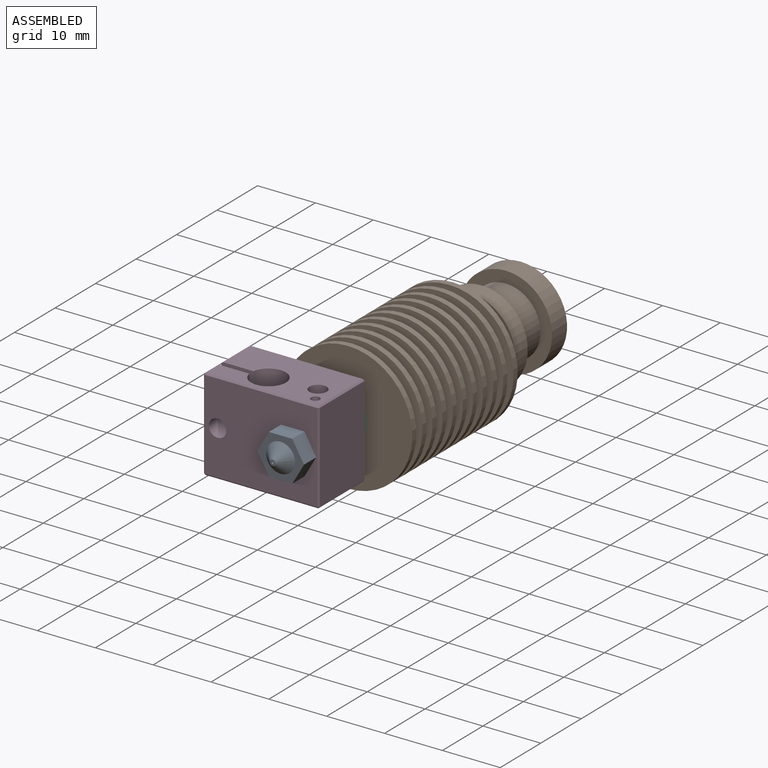
[diagram: assembled view]
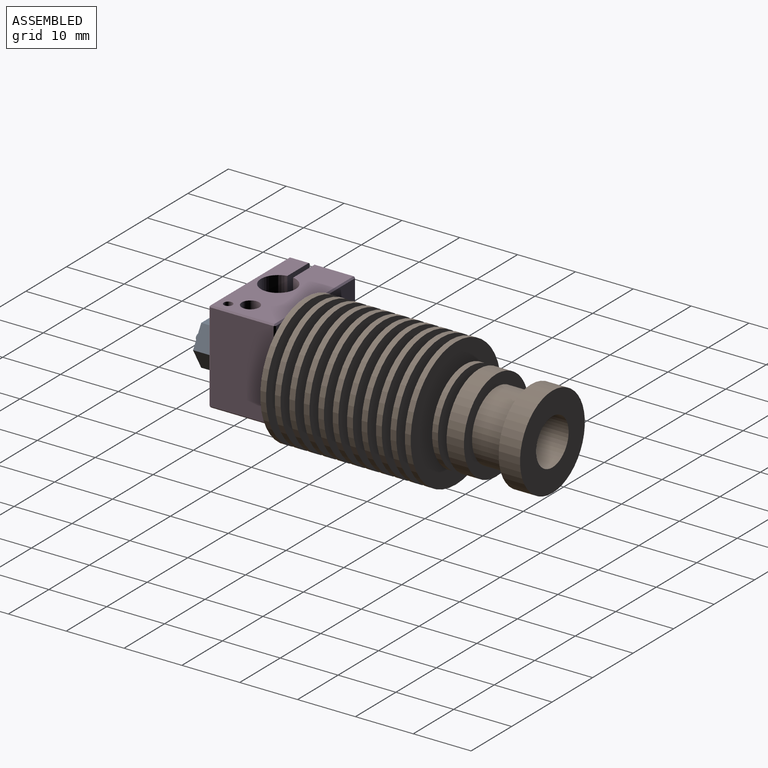
[diagram: assembled view, second angle]
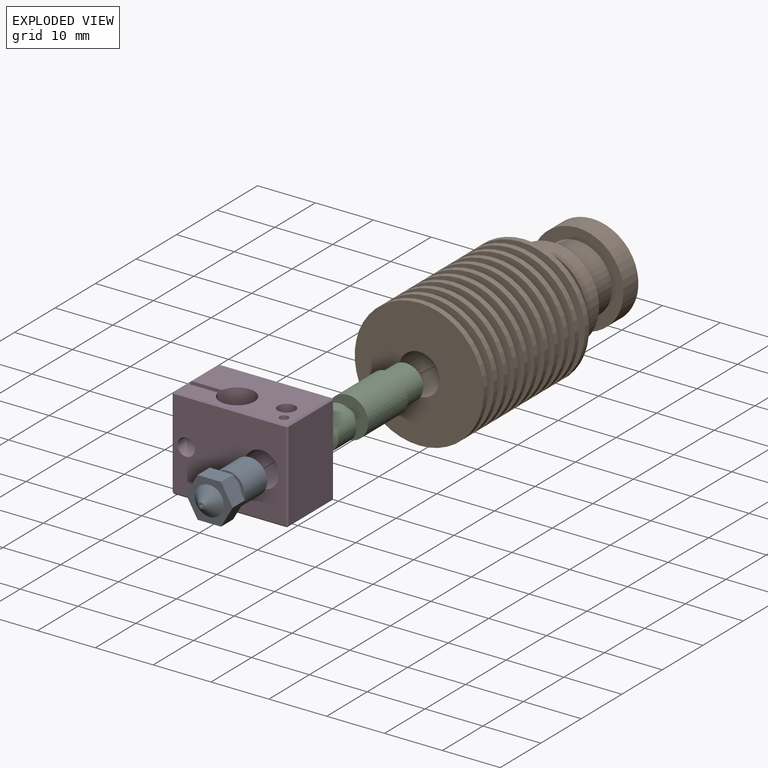
[diagram: exploded view]
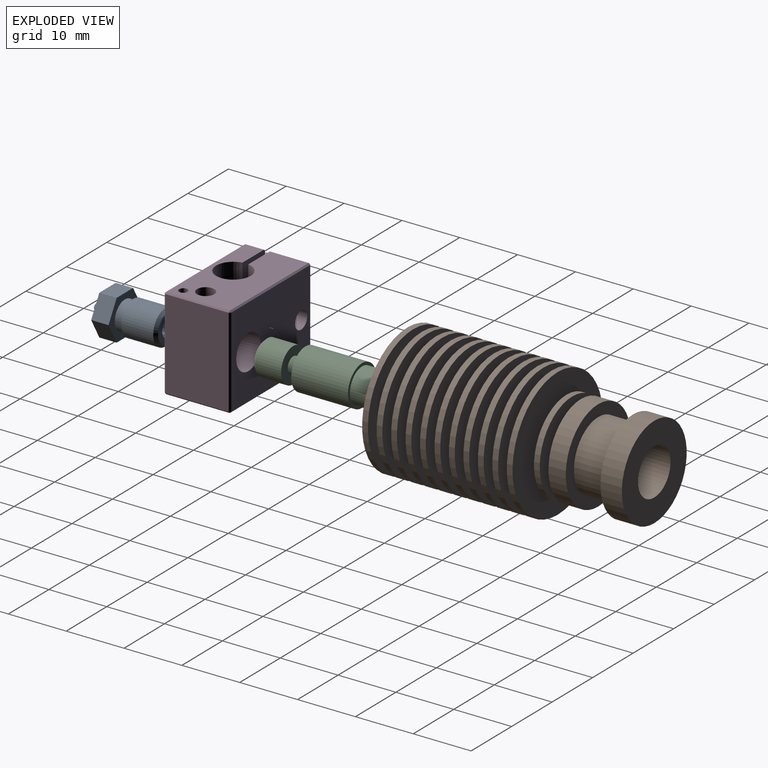
[diagram: exploded view, second angle]
ASSEMBLY  parts=4 mates=3
PART A: 22 faces, bbox 8.1x12.5x7 mm
  f0: plane 8.08x7mm, normal (0,-1,0), area 22.8mm2, adj f1,f2,f3,f4,f5,f6,f7
  f1: cone r=0mm half-angle=45deg, axis (0,1,0), area 26.7mm2, adj f0,f8
  f2: plane 3.5x3mm, normal (-0.87,0,0.5), area 12.1mm2, adj f0,f3,f7,f9
  f3: plane 3.5x3mm, normal (-0.87,0,-0.5), area 12.1mm2, adj f0,f2,f4,f9
  f4: plane 4.04x3mm, normal (0,0,-1), area 12.1mm2, adj f0,f3,f5,f9
  f5: plane 3.5x3mm, normal (0.87,0,-0.5), area 12.1mm2, adj f0,f4,f6,f9
  f6: plane 3.5x3mm, normal (0.87,0,0.5), area 12.1mm2, adj f0,f5,f7,f9
  f7: plane 4.04x3mm, normal (0,0,1), area 12.1mm2, adj f0,f2,f6,f9
  f8: plane 1x1mm, normal (0,-1,0), area 0.7mm2, adj f1,f10,f11
  f9: plane 8.08x7mm, normal (0,1,0), area 22.8mm2, adj f2,f3,f4,f5,f6,f7,f12
  f10: cylinder r=0.2mm len=0.8mm, axis (0,1,0), area 0.5mm2, adj f8,f11,f13
  f11: cylinder r=0.2mm len=0.8mm, axis (0,1,0), area 0.5mm2, adj f8,f10,f13
  f12: cylinder r=2.5mm len=5mm, axis (0,1,0), area 23.6mm2, adj f9,f14
  f13: cone r=0mm half-angle=47.7deg, axis (0,1,0), area 2.2mm2, adj f10,f11,f15
  f14: plane 6x6mm, normal (0,-1,0), area 8.6mm2, adj f12,f16
  f15: cylinder r=0.75mm len=1.5mm, axis (0,1,0), area 2.2mm2, adj f13,f17
  f16: cylinder r=3mm len=6mm, axis (0,1,0), area 103.7mm2, adj f14,f18
  f17: cone r=0mm half-angle=47.7deg, axis (0,1,0), area 1.9mm2, adj f15,f19
  f18: cone r=0mm half-angle=45deg, axis (0,-1,0), area 12.2mm2, adj f16,f20
  f19: cylinder r=1mm len=10mm, axis (0,1,0), area 62.8mm2, adj f17,f21
  f20: plane 5x5mm, normal (0,1,0), area 12.6mm2, adj f18,f21
  f21: cone r=0mm half-angle=45deg, axis (0,1,0), area 5.6mm2, adj f19,f20
PART B: 78 faces, bbox 22.3x42.7x22.3 mm
  f0: cylinder r=2.1mm len=20mm, axis (0,-1,0), area 263.9mm2, adj f1,f2
  f1: cone r=0mm half-angle=45deg, axis (0,-1,0), area 34.8mm2, adj f0,f3
  f2: cone r=0mm half-angle=45deg, axis (0,1,0), area 51.5mm2, adj f0,f4
  f3: cylinder r=3.5mm len=13.3mm, axis (0,-1,0), area 292.5mm2, adj f1,f5
  f4: cylinder r=4mm len=8mm, axis (0,-1,0), area 153.3mm2, adj f2,f6
  f5: plane 22.3x22.3mm, normal (0,-1,0), area 352.1mm2, adj f3,f7
  f6: plane 16x16mm, normal (0,1,0), area 150.8mm2, adj f4,f8
  f7: cylinder r=11.15mm len=22.3mm, axis (0,-1,0), area 70.1mm2, adj f5,f9
  f8: cylinder r=8mm len=16mm, axis (0,-1,0), area 186mm2, adj f6,f10
  f9: plane 22.3x22.3mm, normal (0,1,0), area 277.5mm2, adj f7,f11
  f10: plane 16x16mm, normal (0,-1,0), area 88mm2, adj f8,f12
  f11: cylinder r=6mm len=12mm, axis (0,-1,0), area 56.5mm2, adj f9,f13
  f12: cylinder r=6mm len=12mm, axis (0,-1,0), area 226.2mm2, adj f10,f14
  f13: plane 22.3x22.3mm, normal (0,-1,0), area 277.5mm2, adj f11,f15,f16
  f14: plane 16x16mm, normal (0,1,0), area 88mm2, adj f12,f17
  f15: cylinder r=11.15mm len=22.3mm, axis (0,-1,0), area 35mm2, adj f13,f16,f18
  f16: cylinder r=11.15mm len=22.3mm, axis (0,-1,0), area 35mm2, adj f13,f15,f18
  f17: cylinder r=8mm len=16mm, axis (0,-1,0), area 150.8mm2, adj f14,f19
  f18: plane 22.3x22.3mm, normal (0,1,0), area 282.4mm2, adj f15,f16,f20,f21
  f19: plane 16x16mm, normal (0,-1,0), area 132mm2, adj f17,f22
  f20: cylinder r=5.87mm len=11.74mm, axis (0,-1,0), area 27.7mm2, adj f18,f21,f23
  f21: cylinder r=5.87mm len=11.74mm, axis (0,-1,0), area 27.7mm2, adj f18,f20,f23
  f22: cylinder r=4.69mm len=9.38mm, axis (0,-1,0), area 44.2mm2, adj f19,f24
  f23: plane 22.3x22.3mm, normal (0,-1,0), area 282.4mm2, adj f20,f21,f25,f26
  f24: plane 16x16mm, normal (0,1,0), area 132mm2, adj f22,f27
  f25: cylinder r=11.15mm len=22.3mm, axis (0,-1,0), area 35mm2, adj f23,f26,f28
  f26: cylinder r=11.15mm len=22.3mm, axis (0,-1,0), area 35mm2, adj f23,f25,f28
  f27: cylinder r=8mm len=16mm, axis (0,-1,0), area 50.3mm2, adj f24,f29
  f28: plane 22.3x22.3mm, normal (0,1,0), area 287.1mm2, adj f25,f26,f30,f31
  f29: plane 16x16mm, normal (0,-1,0), area 132mm2, adj f27,f32
  f30: cylinder r=5.74mm len=11.48mm, axis (0,-1,0), area 27mm2, adj f28,f31,f33
  f31: cylinder r=5.74mm len=11.48mm, axis (0,-1,0), area 27mm2, adj f28,f30,f33
  f32: cylinder r=4.69mm len=9.38mm, axis (0,-1,0), area 44.2mm2, adj f29,f34
  f33: plane 22.3x22.3mm, normal (0,-1,0), area 287.1mm2, adj f30,f31,f35,f36
  f34: plane 22.3x22.3mm, normal (0,1,0), area 321.5mm2, adj f32,f37
  f35: cylinder r=11.15mm len=22.3mm, axis (0,-1,0), area 35mm2, adj f33,f36,f38
  f36: cylinder r=11.15mm len=22.3mm, axis (0,-1,0), area 35mm2, adj f33,f35,f38
  f37: cylinder r=11.15mm len=22.3mm, axis (0,-1,0), area 70.1mm2, adj f34,f39
  f38: plane 22.3x22.3mm, normal (0,1,0), area 291.8mm2, adj f35,f36,f40,f41
  f39: plane 22.3x22.3mm, normal (0,-1,0), area 317.6mm2, adj f37,f42,f43
  f40: cylinder r=5.61mm len=11.21mm, axis (0,-1,0), area 26.4mm2, adj f38,f41,f44
  f41: cylinder r=5.61mm len=11.21mm, axis (0,-1,0), area 26.4mm2, adj f38,f40,f44
  f42: cylinder r=4.82mm len=9.64mm, axis (0,-1,0), area 22.7mm2, adj f39,f43,f45
  f43: cylinder r=4.82mm len=9.64mm, axis (0,-1,0), area 22.7mm2, adj f39,f42,f45
  f44: plane 22.3x22.3mm, normal (0,-1,0), area 291.8mm2, adj f40,f41,f46,f47
  f45: plane 22.3x22.3mm, normal (0,1,0), area 317.6mm2, adj f42,f43,f48,f49
  f46: cylinder r=11.15mm len=22.3mm, axis (0,-1,0), area 35mm2, adj f44,f47,f50
  f47: cylinder r=11.15mm len=22.3mm, axis (0,-1,0), area 35mm2, adj f44,f46,f50
  f48: cylinder r=11.15mm len=22.3mm, axis (0,-1,0), area 35mm2, adj f45,f49,f51
  f49: cylinder r=11.15mm len=22.3mm, axis (0,-1,0), area 35mm2, adj f45,f48,f51
  f50: plane 22.3x22.3mm, normal (0,1,0), area 296.4mm2, adj f46,f47,f52,f53
  f51: plane 22.3x22.3mm, normal (0,-1,0), area 313.5mm2, adj f48,f49,f54,f55
  f52: cylinder r=5.48mm len=10.95mm, axis (0,-1,0), area 25.8mm2, adj f50,f53,f56
  f53: cylinder r=5.48mm len=10.95mm, axis (0,-1,0), area 25.8mm2, adj f50,f52,f56
  f54: cylinder r=4.95mm len=9.9mm, axis (0,-1,0), area 23.3mm2, adj f51,f55,f57
  f55: cylinder r=4.95mm len=9.9mm, axis (0,-1,0), area 23.3mm2, adj f51,f54,f57
  f56: plane 22.3x22.3mm, normal (0,-1,0), area 296.4mm2, adj f52,f53,f58,f59
  f57: plane 22.3x22.3mm, normal (0,1,0), area 313.5mm2, adj f54,f55,f60,f61
  f58: cylinder r=11.15mm len=22.3mm, axis (0,-1,0), area 35mm2, adj f56,f59,f62
  f59: cylinder r=11.15mm len=22.3mm, axis (0,-1,0), area 35mm2, adj f56,f58,f62
  f60: cylinder r=11.15mm len=22.3mm, axis (0,-1,0), area 35mm2, adj f57,f61,f63
  f61: cylinder r=11.15mm len=22.3mm, axis (0,-1,0), area 35mm2, adj f57,f60,f63
  f62: plane 22.3x22.3mm, normal (0,1,0), area 300.8mm2, adj f58,f59,f64,f65
  f63: plane 22.3x22.3mm, normal (0,-1,0), area 309.4mm2, adj f60,f61,f66,f67
  f64: cylinder r=5.34mm len=10.69mm, axis (0,-1,0), area 25.2mm2, adj f62,f65,f68
  f65: cylinder r=5.34mm len=10.69mm, axis (0,-1,0), area 25.2mm2, adj f62,f64,f68
  f66: cylinder r=5.08mm len=10.17mm, axis (0,-1,0), area 24mm2, adj f63,f67,f69
  f67: cylinder r=5.08mm len=10.17mm, axis (0,-1,0), area 24mm2, adj f63,f66,f69
  f68: plane 22.3x22.3mm, normal (0,-1,0), area 300.8mm2, adj f64,f65,f70,f71
  f69: plane 22.3x22.3mm, normal (0,1,0), area 309.4mm2, adj f66,f67,f72,f73
  f70: cylinder r=11.15mm len=22.3mm, axis (0,-1,0), area 35mm2, adj f68,f71,f74
  f71: cylinder r=11.15mm len=22.3mm, axis (0,-1,0), area 35mm2, adj f68,f70,f74
  f72: cylinder r=11.15mm len=22.3mm, axis (0,-1,0), area 35mm2, adj f69,f73,f76
  f73: cylinder r=11.15mm len=22.3mm, axis (0,-1,0), area 35mm2, adj f69,f72,f76
  f74: plane 22.3x22.3mm, normal (0,1,0), area 305.2mm2, adj f70,f71,f75,f77
  f75: cylinder r=5.21mm len=10.43mm, axis (0,-1,0), area 24.6mm2, adj f74,f76,f77
  f76: plane 22.3x22.3mm, normal (0,-1,0), area 305.2mm2, adj f72,f73,f75,f77
  f77: cylinder r=5.21mm len=10.43mm, axis (0,-1,0), area 24.6mm2, adj f74,f75,f76
PART C: 15 faces, bbox 7x21.9x7 mm
  f0: cylinder r=3.5mm len=9.8mm, axis (0,1,0), area 215.5mm2, adj f1,f2
  f1: plane 7x7mm, normal (0,-1,0), area 32.3mm2, adj f0,f3
  f2: plane 7x7mm, normal (0,1,0), area 10.2mm2, adj f0,f4
  f3: cylinder r=1.4mm len=2.8mm, axis (0,1,0), area 18.5mm2, adj f1,f5
  f4: cylinder r=3mm len=6mm, axis (0,1,0), area 84.8mm2, adj f2,f6,f7
  f5: plane 6x6mm, normal (0,1,0), area 22.1mm2, adj f3,f8
  f6: cone r=0mm half-angle=45deg, axis (0,-1,0), area 6.1mm2, adj f4,f7,f9
  f7: cone r=0mm half-angle=45deg, axis (0,-1,0), area 6.1mm2, adj f4,f6,f9
  f8: cylinder r=3mm len=6mm, axis (0,1,0), area 84.8mm2, adj f5,f10
  f9: plane 5x5mm, normal (0,1,0), area 5.8mm2, adj f6,f7,f11
  f10: cone r=0mm half-angle=45deg, axis (0,1,0), area 12.2mm2, adj f8,f12
  f11: cylinder r=2.1mm len=5mm, axis (0,1,0), area 66mm2, adj f9,f13
  f12: plane 5x5mm, normal (0,-1,0), area 16.5mm2, adj f10,f14
  f13: cone r=0mm half-angle=45deg, axis (0,1,0), area 15.2mm2, adj f11,f14
  f14: cylinder r=1mm len=15.8mm, axis (0,1,0), area 99.3mm2, adj f12,f13
PART D: 39 faces, bbox 20x11.5x16 mm
  f0: plane 0.25x0.25mm, normal (0.58,-0.58,-0.58), area 0.1mm2, adj f4,f9,f11
  f1: plane 0.25x0.25mm, normal (0.58,0.58,-0.58), area 0.1mm2, adj f5,f10,f11
  f2: plane 0.25x0.25mm, normal (-0.58,-0.58,-0.58), area 0.1mm2, adj f3,f9,f12
  f3: plane 15.5x0.25mm, normal (-0.71,-0.71,0), area 5.5mm2, adj f2,f14,f15,f16
  f4: plane 15.5x0.25mm, normal (0.71,-0.71,0), area 5.5mm2, adj f0,f15,f17,f18
  f5: plane 15.5x0.25mm, normal (0.71,0.71,0), area 5.5mm2, adj f1,f17,f19,f20
  f6: cylinder r=3mm len=11.5mm, axis (0,-1,0), area 216.8mm2, adj f15,f20
  f7: plane 0.25x0.25mm, normal (-0.58,0.58,-0.58), area 0.1mm2, adj f8,f10,f22
  f8: plane 15.5x0.25mm, normal (-0.71,0.71,0), area 5.5mm2, adj f7,f20,f21,f23
  f9: plane 19.5x0.25mm, normal (0,-0.71,-0.71), area 6.9mm2, adj f0,f2,f15,f25
  f10: plane 19.5x0.25mm, normal (0,0.71,-0.71), area 6.9mm2, adj f1,f7,f20,f25
  f11: plane 11x0.25mm, normal (0.71,0,-0.71), area 3.9mm2, adj f0,f1,f17,f25
  f12: plane 3.25x0.25mm, normal (-0.71,0,-0.71), area 1.1mm2, adj f2,f14,f25,f27
  f13: cylinder r=1.5mm len=3.5mm, axis (0,1,0), area 33mm2, adj f15,f27
  f14: plane 15.5x3.25mm, normal (-1,0,0), area 50.4mm2, adj f3,f12,f27,f28
  f15: plane 19.5x15.5mm, normal (0,-1,0), area 266.9mm2, adj f3,f4,f6,f9,f13,f29
  f16: plane 0.25x0.25mm, normal (-0.58,-0.58,0.58), area 0.1mm2, adj f3,f28,f29
  f17: plane 15.5x11mm, normal (1,0,0), area 170.5mm2, adj f4,f5,f11,f30
  f18: plane 0.25x0.25mm, normal (0.58,-0.58,0.58), area 0.1mm2, adj f4,f29,f30
  f19: plane 0.25x0.25mm, normal (0.58,0.58,0.58), area 0.1mm2, adj f5,f30,f31
  f20: plane 19.5x15.5mm, normal (0,1,0), area 266.9mm2, adj f5,f6,f8,f10,f24,f31
  f21: plane 0.25x0.25mm, normal (-0.58,0.58,0.58), area 0.1mm2, adj f8,f31,f32
  f22: plane 6.75x0.25mm, normal (-0.71,0,-0.71), area 2.4mm2, adj f7,f23,f25,f33
  f23: plane 15.5x6.75mm, normal (-1,0,0), area 104.6mm2, adj f8,f22,f32,f33
  f24: cylinder r=1.5mm len=7mm, axis (0,-1,0), area 66mm2, adj f20,f33
  f25: plane 19.5x11mm, normal (0,0,-1), area 181mm2, adj f9,f10,f11,f12,f22,f27,f33,f34
  f26: plane 3x3mm, normal (0,0,1), area 7.1mm2, adj f35
  f27: plane 16x5.54mm, normal (0,1,0), area 81.5mm2, adj f12,f13,f14,f25,f28,f34,f37
  f28: plane 3.25x0.25mm, normal (-0.71,0,0.71), area 1.1mm2, adj f14,f16,f27,f37
  f29: plane 19.5x0.25mm, normal (0,-0.71,0.71), area 6.9mm2, adj f15,f16,f18,f37
  f30: plane 11x0.25mm, normal (0.71,0,0.71), area 3.9mm2, adj f17,f18,f19,f37
  f31: plane 19.5x0.25mm, normal (0,0.71,0.71), area 6.9mm2, adj f19,f20,f21,f37
  f32: plane 6.75x0.25mm, normal (-0.71,0,0.71), area 2.4mm2, adj f21,f23,f33,f37
  f33: plane 16x5.54mm, normal (0,-1,0), area 81.5mm2, adj f22,f23,f24,f25,f32,f34,f37
  f34: cylinder r=3mm len=16mm, axis (0,0,1), area 285.5mm2, adj f25,f27,f33,f37
  f35: cylinder r=1.5mm len=3.5mm, axis (0,0,1), area 33mm2, adj f26,f37
  f36: plane 1.5x1.5mm, normal (0,0,1), area 1.8mm2, adj f38
  f37: plane 19.5x11mm, normal (0,0,1), area 172.1mm2, adj f27,f28,f29,f30,f31,f32,f33,f34
  f38: cylinder r=0.75mm len=4.5mm, axis (0,0,1), area 21.2mm2, adj f36,f37
PLACE A t=(0,-4.25,0)mm
PLACE B rot(axis=(0,1,0),0deg) t=(0,12.35,0)mm
PLACE C t=(0,5.25,0)mm
PLACE D t=(-5.5,-1.25,0)mm
MATE fastened B.f0 <-> C.f0  axis (0,-1,0) through (0,12.35,0)mm
MATE fastened D.f6 <-> C.f0  axis (0,1,0) through (0,10.25,0)mm
MATE fastened A.f1 <-> D.f6  axis (0,1,0) through (0,-1.25,0)mm
